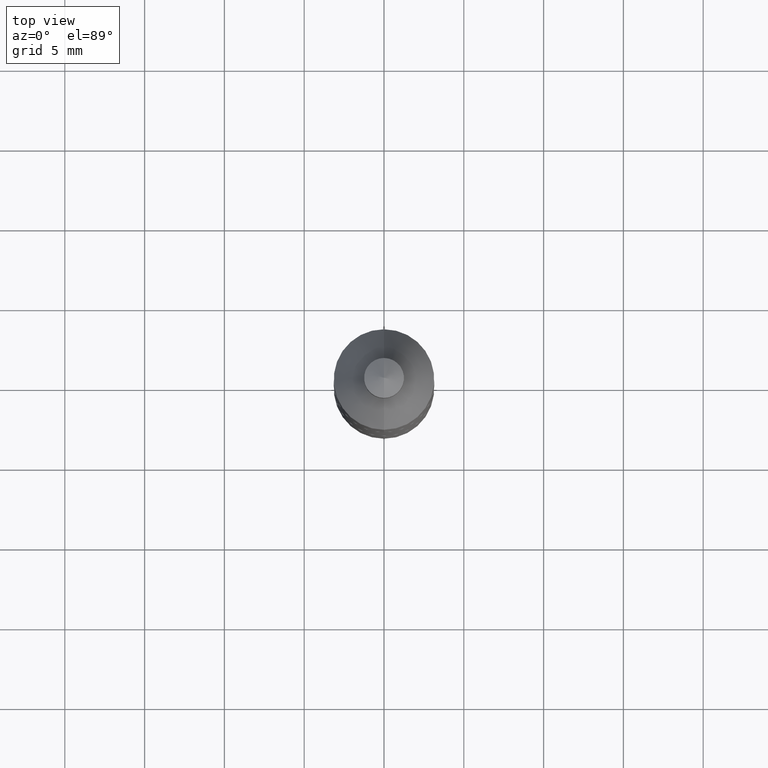
[diagram: clean part render]
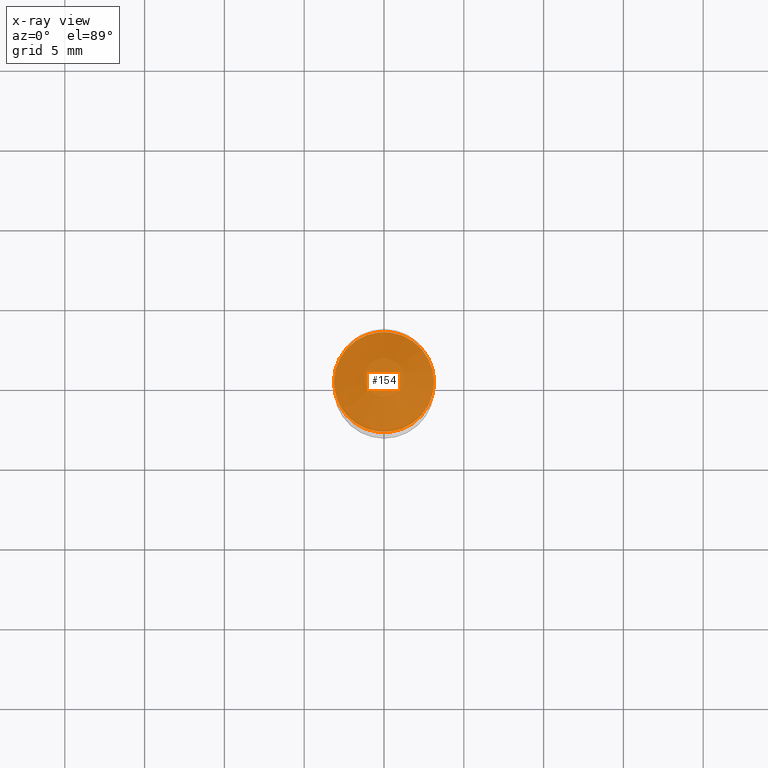
[diagram: x-ray — body ghosted, one internal face saturated and labeled with its STEP entity id]
A machine part, top view, then the same camera in x-ray: the body is ghosted and one INTERNAL B-rep face — a face not visible from any outside direction — is saturated and labeled: STEP entity #154.
In plain terms, the highlighted planar face has unit normal (-0, 0, 1).
Its self-contained STEP definition (entity closure, byte-faithful):
#1 = VERTEX_POINT ( 'NONE', #28 ) ;
#21 = AXIS2_PLACEMENT_3D ( 'NONE', #417, #52, #309 ) ;
#28 = CARTESIAN_POINT ( 'NONE',  ( 0.1235000000000000264, 4.538925740496383212E-17, 0.2600000000000000089 ) ) ;
#52 = DIRECTION ( 'NONE',  ( -2.445468806185136597E-29, 3.491481338843145583E-15, 1.000000000000000000 ) ) ;
#150 = CARTESIAN_POINT ( 'NONE',  ( -0.1235000000000000264, 1.755898904988734470E-15, 0.2600000000000000089 ) ) ;
#154 = ADVANCED_FACE ( 'NONE', ( #637 ), #578, .T. ) ;
#169 = AXIS2_PLACEMENT_3D ( 'NONE', #476, #530, #204 ) ;
#170 = ORIENTED_EDGE ( 'NONE', *, *, #471, .T. ) ;
#204 = DIRECTION ( 'NONE',  ( -1.000000000000000000, 6.982962677686265922E-15, -4.876176775795935793E-29 ) ) ;
#243 = CARTESIAN_POINT ( 'NONE',  ( -6.358218896081355544E-30, 9.077851480992179461E-16, 0.2600000000000000089 ) ) ;
#247 = EDGE_CURVE ( 'NONE', #702, #1, #313, .T. ) ;
#309 = DIRECTION ( 'NONE',  ( 1.000000000000000000, -6.982962677686266711E-15, 0.000000000000000000 ) ) ;
#313 = CIRCLE ( 'NONE', #21, 0.1235000000000000264 ) ;
#339 = ORIENTED_EDGE ( 'NONE', *, *, #247, .T. ) ;
#417 = CARTESIAN_POINT ( 'NONE',  ( -6.358218896081355544E-30, 9.077851480992179461E-16, 0.2600000000000000089 ) ) ;
#457 = CIRCLE ( 'NONE', #477, 0.1235000000000000264 ) ;
#471 = EDGE_CURVE ( 'NONE', #1, #702, #457, .T. ) ;
#476 = CARTESIAN_POINT ( 'NONE',  ( -6.860229227156873476E-30, 8.358944114238426139E-16, 0.2600000000000000089 ) ) ;
#477 = AXIS2_PLACEMENT_3D ( 'NONE', #243, #617, #567 ) ;
#530 = DIRECTION ( 'NONE',  ( -2.438088387897960049E-29, 3.491481338843145188E-15, 1.000000000000000000 ) ) ;
#567 = DIRECTION ( 'NONE',  ( 1.000000000000000000, -6.982962677686266711E-15, 0.000000000000000000 ) ) ;
#578 = PLANE ( 'NONE',  #169 ) ;
#617 = DIRECTION ( 'NONE',  ( -2.445468806185136597E-29, 3.491481338843145583E-15, 1.000000000000000000 ) ) ;
#628 = EDGE_LOOP ( 'NONE', ( #170, #339 ) ) ;
#637 = FACE_OUTER_BOUND ( 'NONE', #628, .T. ) ;
#702 = VERTEX_POINT ( 'NONE', #150 ) ;